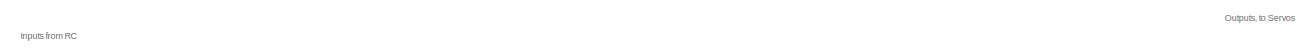
[diagram: root canvas - part 1/3, top center region]
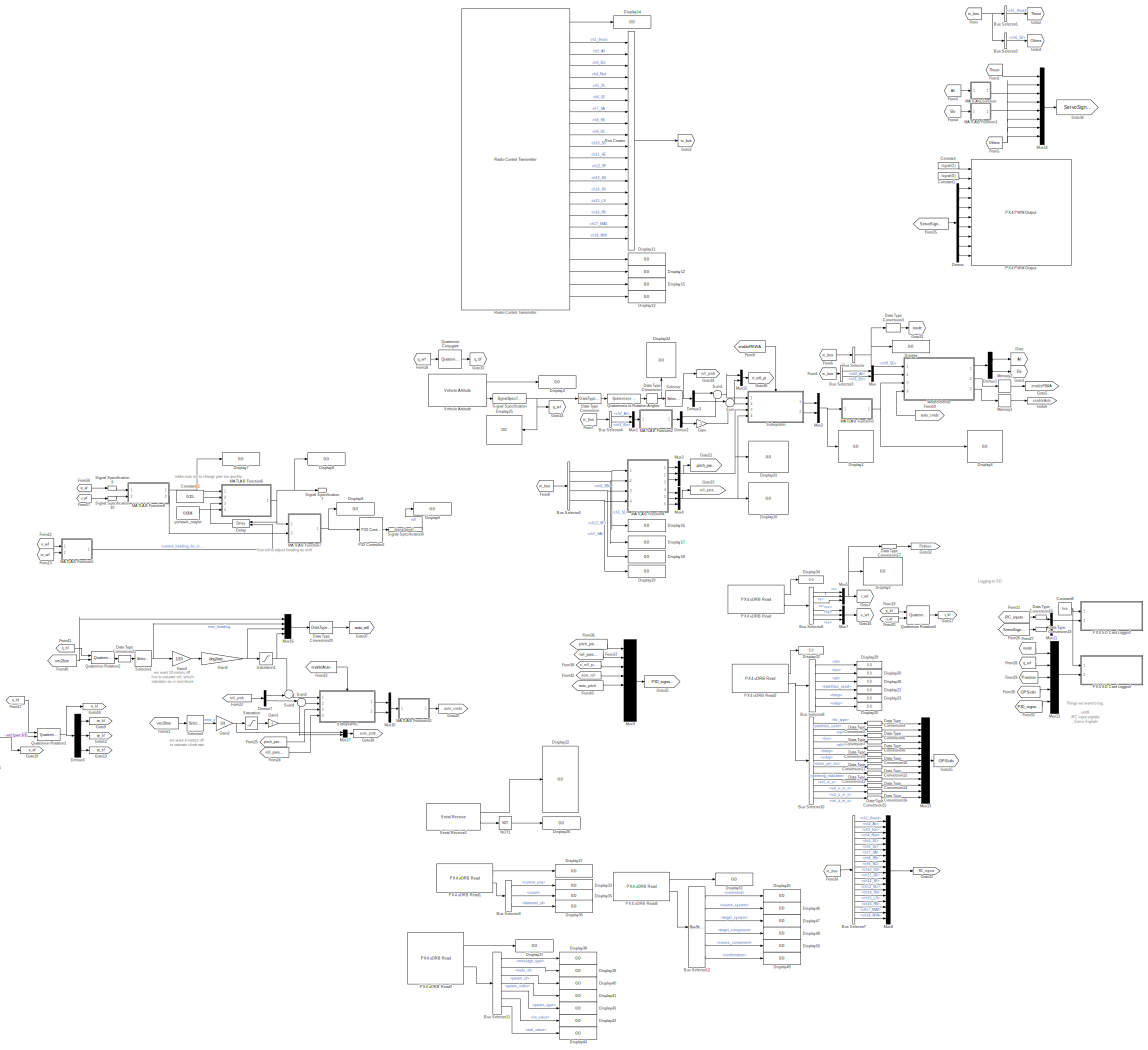
[diagram: root canvas - part 2/3, most of the canvas]
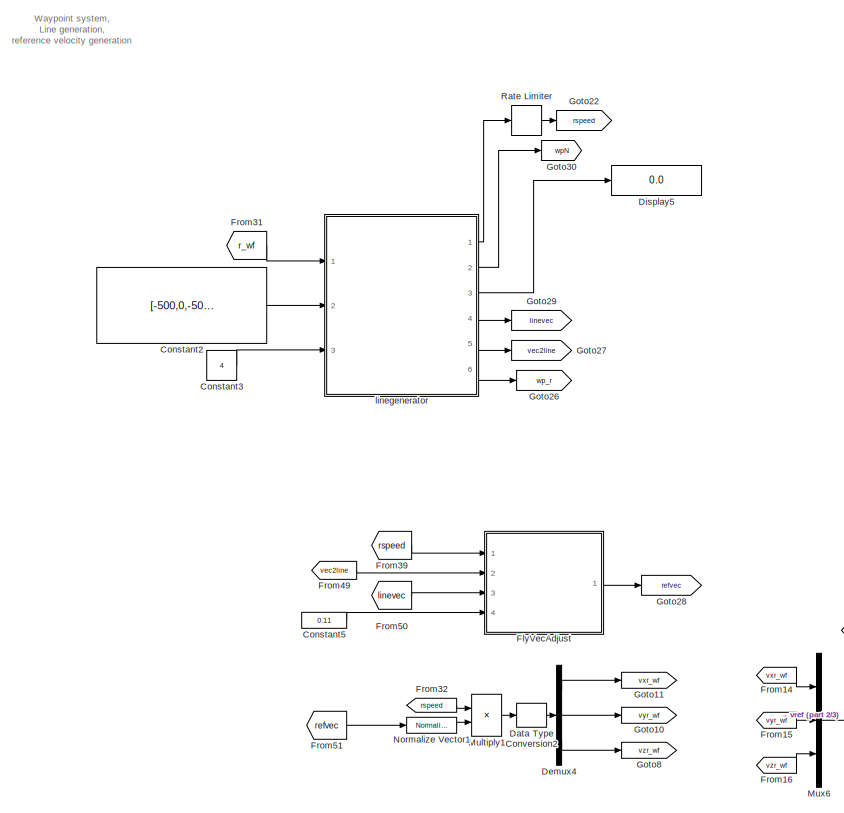
[diagram: root canvas - part 3/3, middle left region]
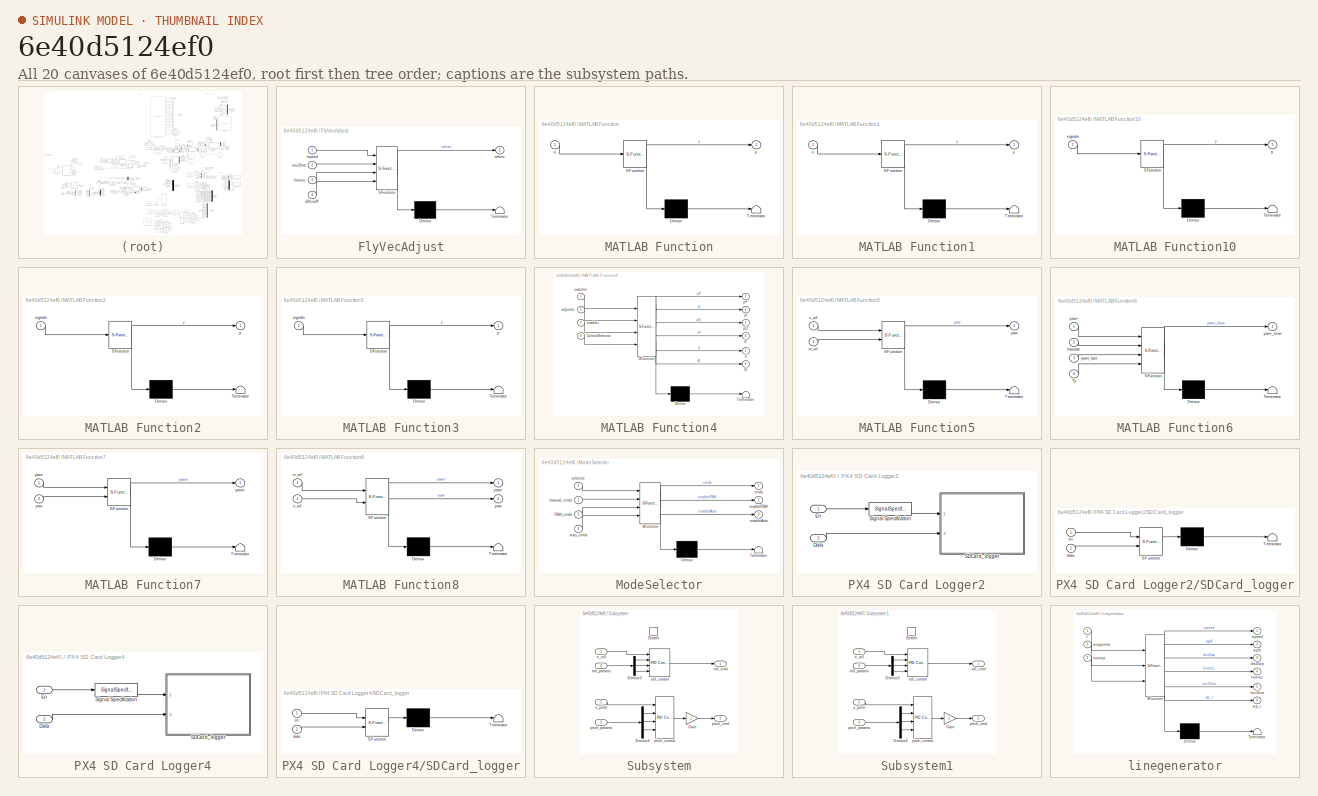
[diagram: thumbnail index - all 20 canvases of the model, root first then tree order]
MODEL slx_6e40d5124ef0
KIND model
CONFIG AbsTol = auto
CONFIG EnableMultiTasking = on
CONFIG FixedStep = auto
CONFIG MaxStep = auto
CONFIG MinStep = auto
CONFIG RelTol = 1e-3
CONFIG SampleTimeConstraint = Unconstrained
CONFIG Solver = FixedStepAuto
CONFIG SolverName = FixedStepAuto
CONFIG StartTime = 0.0
CONFIG StopTime = 10.0
BLOCK [BusCreator] Bus Creator
  DisplayOption = bar
  InheritFromInputs = on
  Inputs = 18
  Ports = [18, 1]
BLOCK [BusSelector] Bus Selector
  OutputAsBus = off
  OutputSignals = ch9_SC
  Ports = [1, 1]
BLOCK [BusSelector] Bus Selector1
  OutputAsBus = off
  OutputSignals = ch1_thrust
  Ports = [1, 1]
BLOCK [BusSelector] Bus Selector10
  OutputAsBus = off
  OutputSignals = fix_type,satellites_used,lat,lon,alt,hdop,vdop,noise_per_ms,jamming_indicator,vel_m_s,vel_n_m_s,vel_e_m_s,vel_d_m_s
  Ports = [1, 13]
BLOCK [BusSelector] Bus Selector11
  OutputAsBus = off
  OutputSignals = message_type,node_id,param_id,param_index,param_type,int_value,real_value
  Ports = [1, 7]
BLOCK [BusSelector] Bus Selector12
  OutputAsBus = off
  OutputSignals = command,source_system,target_system,target_component,source_component,confirmation
  Ports = [1, 6]
BLOCK [BusSelector] Bus Selector2
  OutputAsBus = off
  OutputSignals = ch6_S2
  Ports = [1, 1]
BLOCK [BusSelector] Bus Selector3
  OutputAsBus = off
  OutputSignals = ch2_Ail,ch3_Ele
  Ports = [1, 2]
BLOCK [BusSelector] Bus Selector4
  OutputAsBus = off
  OutputSignals = ch2_Ail,ch3_Ele
  Ports = [1, 2]
BLOCK [BusSelector] Bus Selector5
  OutputAsBus = off
  OutputSignals = ch8_SB,ch5_S1,ch12_SF,ch7_SA
  Ports = [1, 4]
BLOCK [BusSelector] Bus Selector6
  OutputAsBus = off
  OutputSignals = x,y,z,vx,vy,vz
  Ports = [1, 6]
BLOCK [BusSelector] Bus Selector7
  OutputAsBus = off
  OutputSignals = ch1_thrust,ch2_Ail,ch3_Ele,ch4_Rud,ch5_S1,ch6_S2,ch7_SA,ch8_SB,ch9_SC,ch10_SD,ch11_SE,ch12_SF,ch13_SG,ch14_SH,ch15_LS,ch16_RS,ch17_MAX,ch18_MIN
  Ports = [1, 18]
BLOCK [BusSelector] Bus Selector8
  OutputAsBus = off
  OutputSignals = lat,lon,alt,satellites_used,hdop,vdop
  Ports = [1, 6]
BLOCK [BusSelector] Bus Selector9
  OutputAsBus = off
  OutputSignals = current_seq,count,dataman_id
  Ports = [1, 3]
BLOCK [Constant] Constant
  Value = logical(1)
BLOCK [Constant] Constant1
  Value = logical(0)
BLOCK [Constant] Constant11
  Commented = on
  OutDataTypeStr = single
  SampleTime = 1/250
  Value = 0.15
BLOCK [Constant] Constant2
  OutDataTypeStr = single
  Value = [-500,0,-50,15,30; -500,-500,-50,15,30; 0, -500,-50,15,30; 0,0,-50,15,30]
BLOCK [Constant] Constant3
  OutDataTypeStr = single
  Value = 4
BLOCK [Constant] Constant5
  OutDataTypeStr = single
  SampleTime = -1
  Value = 0.11
BLOCK [Constant] Constant8
  OutDataTypeStr = boolean
  SampleTime = 0.004
  Value = true
BLOCK [DataTypeConversion] Data Type Conversion
  OutDataTypeStr = double
  RndMeth = Floor
  SaturateOnIntegerOverflow = off
BLOCK [DataTypeConversion] Data Type Conversion1
  OutDataTypeStr = single
  RndMeth = Floor
  SaturateOnIntegerOverflow = off
BLOCK [DataTypeConversion] Data Type Conversion10
  OutDataTypeStr = single
  RndMeth = Floor
  SaturateOnIntegerOverflow = off
BLOCK [DataTypeConversion] Data Type Conversion11
  OutDataTypeStr = single
  RndMeth = Floor
  SaturateOnIntegerOverflow = off
BLOCK [DataTypeConversion] Data Type Conversion12
  OutDataTypeStr = single
  RndMeth = Floor
  SaturateOnIntegerOverflow = off
BLOCK [DataTypeConversion] Data Type Conversion13
  OutDataTypeStr = single
  RndMeth = Floor
  SaturateOnIntegerOverflow = off
BLOCK [DataTypeConversion] Data Type Conversion14
  OutDataTypeStr = single
  RndMeth = Floor
  SaturateOnIntegerOverflow = off
BLOCK [DataTypeConversion] Data Type Conversion15
  OutDataTypeStr = single
  RndMeth = Floor
  SaturateOnIntegerOverflow = off
BLOCK [DataTypeConversion] Data Type Conversion16
  OutDataTypeStr = single
  RndMeth = Floor
  SaturateOnIntegerOverflow = off
BLOCK [DataTypeConversion] Data Type Conversion17
  OutDataTypeStr = single
  RndMeth = Floor
  SaturateOnIntegerOverflow = off
BLOCK [DataTypeConversion] Data Type Conversion18
  OutDataTypeStr = uint16
  RndMeth = Floor
  SaturateOnIntegerOverflow = off
BLOCK [DataTypeConversion] Data Type Conversion19
  OutDataTypeStr = uint16
  RndMeth = Floor
  SaturateOnIntegerOverflow = off
BLOCK [DataTypeConversion] Data Type Conversion2
  OutDataTypeStr = single
  RndMeth = Floor
  SaturateOnIntegerOverflow = off
BLOCK [DataTypeConversion] Data Type Conversion20
  OutDataTypeStr = single
  RndMeth = Floor
  SaturateOnIntegerOverflow = off
BLOCK [DataTypeConversion] Data Type Conversion21
  OutDataTypeStr = single
  RndMeth = Floor
  SaturateOnIntegerOverflow = off
BLOCK [DataTypeConversion] Data Type Conversion3
  OutDataTypeStr = single
  RndMeth = Floor
  SaturateOnIntegerOverflow = off
BLOCK [DataTypeConversion] Data Type Conversion4
  OutDataTypeStr = single
  RndMeth = Floor
  SaturateOnIntegerOverflow = off
BLOCK [DataTypeConversion] Data Type Conversion5
  OutDataTypeStr = single
  RndMeth = Floor
  SaturateOnIntegerOverflow = off
BLOCK [DataTypeConversion] Data Type Conversion6
  OutDataTypeStr = single
  RndMeth = Floor
  SaturateOnIntegerOverflow = off
BLOCK [DataTypeConversion] Data Type Conversion7
  OutDataTypeStr = single
  RndMeth = Floor
  SaturateOnIntegerOverflow = off
BLOCK [DataTypeConversion] Data Type Conversion8
  OutDataTypeStr = single
  RndMeth = Floor
  SaturateOnIntegerOverflow = off
BLOCK [DataTypeConversion] Data Type Conversion9
  OutDataTypeStr = single
  RndMeth = Floor
  SaturateOnIntegerOverflow = off
BLOCK [Delay] Delay
  Commented = on
  DelayLength = 1
  InitialConditionSource = Input port
  InputPortMap = u0,p4
  Ports = [2, 1]
BLOCK [Demux] Demux
  DisplayOption = bar
  Outputs = 8
  Ports = [1, 8]
BLOCK [Demux] Demux1
  DisplayOption = bar
  Outputs = 2
  Ports = [1, 2]
BLOCK [Demux] Demux2
  DisplayOption = bar
  Outputs = 2
  Ports = [1, 2]
BLOCK [Demux] Demux3
  DisplayOption = bar
  Outputs = 2
  Ports = [1, 2]
BLOCK [Demux] Demux4
  DisplayOption = bar
  Outputs = 3
  Ports = [1, 3]
BLOCK [Demux] Demux5
  DisplayOption = bar
  Outputs = 3
  Ports = [1, 3]
BLOCK [Demux] Demux7
  DisplayOption = bar
  Outputs = 2
  Ports = [1, 2]
BLOCK [Display] Display
  Decimation = 1
  Ports = [1]
BLOCK [Display] Display1
  Decimation = 1
  Ports = [1]
BLOCK [Display] Display10
  Decimation = 1
  Ports = [1]
BLOCK [Display] Display11
  Decimation = 1
  Ports = [1]
BLOCK [Display] Display12
  Decimation = 1
  Ports = [1]
BLOCK [Display] Display13
  Decimation = 1
  Ports = [1]
BLOCK [Display] Display14
  Decimation = 1
  Ports = [1]
BLOCK [Display] Display15
  Decimation = 1
  Ports = [1]
BLOCK [Display] Display16
  Decimation = 1
  Ports = [1]
BLOCK [Display] Display17
  Decimation = 1
  Ports = [1]
BLOCK [Display] Display18
  Decimation = 1
  Ports = [1]
BLOCK [Display] Display19
  Decimation = 1
  Ports = [1]
BLOCK [Display] Display2
  Decimation = 1
  Ports = [1]
BLOCK [Display] Display20
  Decimation = 1
  Ports = [1]
BLOCK [Display] Display21
  Decimation = 1
  Ports = [1]
BLOCK [Display] Display22
  Decimation = 1
  Ports = [1]
BLOCK [Display] Display23
  Decimation = 1
  Ports = [1]
BLOCK [Display] Display24
  Decimation = 1
  Ports = [1]
BLOCK [Display] Display25
  Decimation = 1
  Ports = [1]
BLOCK [Display] Display26
  Decimation = 1
  Ports = [1]
BLOCK [Display] Display27
  Decimation = 1
  Ports = [1]
BLOCK [Display] Display28
  Decimation = 1
  Ports = [1]
BLOCK [Display] Display29
  Decimation = 1
  Ports = [1]
BLOCK [Display] Display3
  Decimation = 1
  Ports = [1]
BLOCK [Display] Display30
  Decimation = 1
  Ports = [1]
BLOCK [Display] Display31
  Decimation = 1
  Ports = [1]
BLOCK [Display] Display32
  Decimation = 1
  Ports = [1]
BLOCK [Display] Display33
  Decimation = 1
  Ports = [1]
BLOCK [Display] Display34
  Decimation = 1
  Ports = [1]
BLOCK [Display] Display35
  Decimation = 1
  Ports = [1]
BLOCK [Display] Display36
  Decimation = 1
  Ports = [1]
BLOCK [Display] Display37
  Decimation = 1
  Ports = [1]
BLOCK [Display] Display38
  Decimation = 1
  Ports = [1]
BLOCK [Display] Display39
  Decimation = 1
  Ports = [1]
BLOCK [Display] Display4
  Decimation = 1
  Ports = [1]
BLOCK [Display] Display40
  Decimation = 1
  Ports = [1]
BLOCK [Display] Display41
  Decimation = 1
  Ports = [1]
BLOCK [Display] Display42
  Decimation = 1
  Ports = [1]
BLOCK [Display] Display43
  Decimation = 1
  Ports = [1]
BLOCK [Display] Display44
  Decimation = 1
  Ports = [1]
BLOCK [Display] Display45
  Decimation = 1
  Ports = [1]
BLOCK [Display] Display46
  Decimation = 1
  Ports = [1]
BLOCK [Display] Display47
  Decimation = 1
  Ports = [1]
BLOCK [Display] Display48
  Decimation = 1
  Ports = [1]
BLOCK [Display] Display49
  Decimation = 1
  Ports = [1]
BLOCK [Display] Display5
  Decimation = 1
  Ports = [1]
BLOCK [Display] Display50
  Decimation = 1
  Ports = [1]
BLOCK [Display] Display51
  Decimation = 1
  Ports = [1]
BLOCK [Display] Display6
  Commented = on
  Decimation = 1
  Ports = [1]
BLOCK [Display] Display7
  Commented = on
  Decimation = 1
  Ports = [1]
BLOCK [Display] Display8
  Commented = on
  Decimation = 1
  Ports = [1]
BLOCK [Display] Display9
  Commented = on
  Decimation = 1
  Ports = [1]
BLOCK [SubSystem] FlyVecAdjust
  ErrorFcn = Stateflow.Translate.translate
  PermitHierarchicalResolution = ExplicitOnly
  Ports = [4, 1]
  RequestExecContextInheritance = off
  SFBlockType = MATLAB Function
  TreatAsAtomicUnit = on
BLOCK [Demux] FlyVecAdjust/ Demux 
  Outputs = 1
  Ports = [1, 1]
BLOCK [S-Function] FlyVecAdjust/ SFunction 
  EnableBusSupport = on
  FunctionName = sf_sfun
  PortCounts = [4 2]
  Ports = [4, 2]
  SFcnIsStateOwnerBlock = off
  SFunctionDeploymentMode = off
  Tag = Stateflow S-Function Bixler_w_autopilot_sepTaskRate 18
BLOCK [Terminator] FlyVecAdjust/ Terminator 
BLOCK [Inport] FlyVecAdjust/d2lcoeff
  IconDisplay = Port number
  Port = 4
BLOCK [Inport] FlyVecAdjust/linevec
  IconDisplay = Port number
  Port = 3
BLOCK [Outport] FlyVecAdjust/refvec
  IconDisplay = Port number
BLOCK [Inport] FlyVecAdjust/rspeed
  IconDisplay = Port number
BLOCK [Inport] FlyVecAdjust/vec2line
  IconDisplay = Port number
  Port = 2
BLOCK [From] From
  GotoTag = rc_bus
BLOCK [From] From1
  GotoTag = rc_bus
BLOCK [From] From10
  GotoTag = auto_cmds
BLOCK [From] From11
  GotoTag = RC_inputs
BLOCK [From] From12
  Commented = on
  GotoTag = v_wf
BLOCK [From] From13
  Commented = on
  GotoTag = vr_wf
BLOCK [From] From14
  GotoTag = vxr_wf
BLOCK [From] From15
  GotoTag = vyr_wf
BLOCK [From] From16
  GotoTag = vzr_wf
BLOCK [From] From17
  GotoTag = q_bf
BLOCK [From] From18
  GotoTag = q_wf
BLOCK [From] From19
  GotoTag = q_bf
BLOCK [From] From2
  GotoTag = Thrust
BLOCK [From] From20
  GotoTag = v_wf
BLOCK [From] From21
  GotoTag = vec2line
BLOCK [From] From22
  GotoTag = roll_pitch
BLOCK [From] From23
  GotoTag = enableAuto
BLOCK [From] From24
  GotoTag = roll_params
BLOCK [From] From25
  GotoTag = pitch_params
BLOCK [From] From26
  GotoTag = ServoSignals
BLOCK [From] From27
  GotoTag = mode
BLOCK [From] From28
  GotoTag = q_wf
BLOCK [From] From29
  GotoTag = Position
BLOCK [From] From3
  GotoTag = Ail
BLOCK [From] From30
  GotoTag = GPSinfo
BLOCK [From] From31
  GotoTag = r_wf
BLOCK [From] From32
  GotoTag = rspeed
BLOCK [From] From33
  GotoTag = PID_signals
BLOCK [From] From34
  GotoTag = rc_bus
BLOCK [From] From35
  GotoTag = ServoSignals
BLOCK [From] From36
  GotoTag = pitch_params
BLOCK [From] From37
  GotoTag = roll_params
BLOCK [From] From38
  GotoTag = e_roll_pitch
BLOCK [From] From39
  GotoTag = rspeed
BLOCK [From] From4
  GotoTag = Ele
BLOCK [From] From40
  GotoTag = vec2line
BLOCK [From] From41
  GotoTag = q_bf
BLOCK [From] From42
  GotoTag = auto_roll
BLOCK [From] From43
  GotoTag = auto_pitch
BLOCK [From] From49
  GotoTag = vec2line
BLOCK [From] From5
  GotoTag = Others
BLOCK [From] From50
  GotoTag = linevec
BLOCK [From] From51
  GotoTag = refvec
BLOCK [From] From56
  Commented = on
  GotoTag = vr_wf
BLOCK [From] From57
  Commented = on
  GotoTag = v_wf
BLOCK [From] From6
  GotoTag = rc_bus
BLOCK [From] From7
  GotoTag = rc_bus
BLOCK [From] From8
  GotoTag = rc_bus
BLOCK [From] From9
  GotoTag = enableFBWA
BLOCK [Gain] Gain
  Gain = -1
  OutDataTypeStr = Inherit: Inherit via internal rule
  ParamDataTypeStr = Inherit: Inherit via internal rule
  SaturateOnIntegerOverflow = off
BLOCK [Gain] Gain1
  Gain = -1
  OutDataTypeStr = Inherit: Inherit via internal rule
  ParamDataTypeStr = Inherit: Inherit via internal rule
  SaturateOnIntegerOverflow = off
BLOCK [Gain] Gain2
  Gain = 1/4
  OutDataTypeStr = Inherit: Inherit via internal rule
  ParamDataTypeStr = Inherit: Inherit via internal rule
  SaturateOnIntegerOverflow = off
BLOCK [Gain] Gain3
  Gain = 1/10
  OutDataTypeStr = Inherit: Inherit via internal rule
  ParamDataTypeStr = Inherit: Inherit via internal rule
  SaturateOnIntegerOverflow = off
BLOCK [Gain] Gain4
  Gain = deg2rad(30)
  OutDataTypeStr = Inherit: Inherit via internal rule
  ParamDataTypeStr = Inherit: Inherit via internal rule
  SaturateOnIntegerOverflow = off
BLOCK [Goto] Goto
  GotoTag = Ail
BLOCK [Goto] Goto1
  GotoTag = Ele
BLOCK [Goto] Goto10
  GotoTag = vyr_wf
BLOCK [Goto] Goto11
  GotoTag = vxr_wf
BLOCK [Goto] Goto12
  GotoTag = vyr_bf
BLOCK [Goto] Goto13
  GotoTag = vzr_bf
BLOCK [Goto] Goto14
  GotoTag = q_wf
BLOCK [Goto] Goto15
  GotoTag = q_bf
BLOCK [Goto] Goto16
  GotoTag = v_wf
BLOCK [Goto] Goto17
  GotoTag = v_bf
BLOCK [Goto] Goto18
  GotoTag = vr_bf
BLOCK [Goto] Goto19
  GotoTag = vr_wf
BLOCK [Goto] Goto2
  GotoTag = Thrust
BLOCK [Goto] Goto20
  GotoTag = auto_cmds
BLOCK [Goto] Goto21
  GotoTag = pitch_params
BLOCK [Goto] Goto22
  GotoTag = rspeed
BLOCK [Goto] Goto23
  GotoTag = roll_params
BLOCK [Goto] Goto24
  GotoTag = roll_pitch
BLOCK [Goto] Goto25
  GotoTag = GPSinfo
BLOCK [Goto] Goto26
  GotoTag = wp_r
BLOCK [Goto] Goto27
  GotoTag = vec2line
BLOCK [Goto] Goto28
  GotoTag = refvec
BLOCK [Goto] Goto29
  GotoTag = linevec
BLOCK [Goto] Goto3
  GotoTag = rc_bus
BLOCK [Goto] Goto30
  GotoTag = wpN
BLOCK [Goto] Goto31
  GotoTag = mode
BLOCK [Goto] Goto32
  GotoTag = Position
BLOCK [Goto] Goto33
  GotoTag = RC_inputs
BLOCK [Goto] Goto34
  GotoTag = ServoSignals
BLOCK [Goto] Goto35
  GotoTag = PID_signals
BLOCK [Goto] Goto36
  GotoTag = e_roll_pitch
BLOCK [Goto] Goto37
  GotoTag = auto_roll
BLOCK [Goto] Goto38
  GotoTag = auto_pitch
BLOCK [Goto] Goto4
  GotoTag = Others
BLOCK [Goto] Goto5
  GotoTag = enableFBWA
BLOCK [Goto] Goto6
  GotoTag = enableAuto
BLOCK [Goto] Goto7
  GotoTag = r_wf
BLOCK [Goto] Goto8
  GotoTag = vzr_wf
BLOCK [Goto] Goto9
  GotoTag = vxr_bf
BLOCK [SubSystem] MATLAB Function
  ErrorFcn = Stateflow.Translate.translate
  PermitHierarchicalResolution = ExplicitOnly
  Ports = [1, 1]
  RequestExecContextInheritance = off
  SFBlockType = MATLAB Function
  TreatAsAtomicUnit = on
BLOCK [Demux] MATLAB Function/ Demux 
  Outputs = 1
  Ports = [1, 1]
BLOCK [S-Function] MATLAB Function/ SFunction 
  EnableBusSupport = on
  FunctionName = sf_sfun
  PortCounts = [1 2]
  Ports = [1, 2]
  SFcnIsStateOwnerBlock = off
  SFunctionDeploymentMode = off
  Tag = Stateflow S-Function Bixler_w_autopilot_sepTaskRate 2
BLOCK [Terminator] MATLAB Function/ Terminator 
BLOCK [Inport] MATLAB Function/u
  IconDisplay = Port number
BLOCK [Outport] MATLAB Function/y
  IconDisplay = Port number
BLOCK [SubSystem] MATLAB Function1
  ErrorFcn = Stateflow.Translate.translate
  PermitHierarchicalResolution = ExplicitOnly
  Ports = [1, 1]
  RequestExecContextInheritance = off
  SFBlockType = MATLAB Function
  TreatAsAtomicUnit = on
BLOCK [Demux] MATLAB Function1/ Demux 
  Outputs = 1
  Ports = [1, 1]
BLOCK [S-Function] MATLAB Function1/ SFunction 
  EnableBusSupport = on
  FunctionName = sf_sfun
  PortCounts = [1 2]
  Ports = [1, 2]
  SFcnIsStateOwnerBlock = off
  SFunctionDeploymentMode = off
  Tag = Stateflow S-Function Bixler_w_autopilot_sepTaskRate 1
BLOCK [Terminator] MATLAB Function1/ Terminator 
BLOCK [Inport] MATLAB Function1/u
  IconDisplay = Port number
BLOCK [Outport] MATLAB Function1/y
  IconDisplay = Port number
BLOCK [SubSystem] MATLAB Function10
  ErrorFcn = Stateflow.Translate.translate
  PermitHierarchicalResolution = ExplicitOnly
  Ports = [1, 1]
  RequestExecContextInheritance = off
  SFBlockType = MATLAB Function
  TreatAsAtomicUnit = on
BLOCK [Demux] MATLAB Function10/ Demux 
  Outputs = 1
  Ports = [1, 1]
BLOCK [S-Function] MATLAB Function10/ SFunction 
  EnableBusSupport = on
  FunctionName = sf_sfun
  PortCounts = [1 2]
  Ports = [1, 2]
  SFcnIsStateOwnerBlock = off
  SFunctionDeploymentMode = off
  Tag = Stateflow S-Function Bixler_w_autopilot_sepTaskRate 7
BLOCK [Terminator] MATLAB Function10/ Terminator 
BLOCK [Inport] MATLAB Function10/signals
  IconDisplay = Port number
BLOCK [Outport] MATLAB Function10/y
  IconDisplay = Port number
BLOCK [SubSystem] MATLAB Function2
  ErrorFcn = Stateflow.Translate.translate
  PermitHierarchicalResolution = ExplicitOnly
  Ports = [1, 1]
  RequestExecContextInheritance = off
  SFBlockType = MATLAB Function
  TreatAsAtomicUnit = on
BLOCK [Demux] MATLAB Function2/ Demux 
  Outputs = 1
  Ports = [1, 1]
BLOCK [S-Function] MATLAB Function2/ SFunction 
  EnableBusSupport = on
  FunctionName = sf_sfun
  PortCounts = [1 2]
  Ports = [1, 2]
  SFcnIsStateOwnerBlock = off
  SFunctionDeploymentMode = off
  Tag = Stateflow S-Function Bixler_w_autopilot_sepTaskRate 3
BLOCK [Terminator] MATLAB Function2/ Terminator 
BLOCK [Inport] MATLAB Function2/signals
  IconDisplay = Port number
BLOCK [Outport] MATLAB Function2/y
  IconDisplay = Port number
BLOCK [SubSystem] MATLAB Function3
  ErrorFcn = Stateflow.Translate.translate
  PermitHierarchicalResolution = ExplicitOnly
  Ports = [1, 1]
  RequestExecContextInheritance = off
  SFBlockType = MATLAB Function
  TreatAsAtomicUnit = on
BLOCK [Demux] MATLAB Function3/ Demux 
  Outputs = 1
  Ports = [1, 1]
BLOCK [S-Function] MATLAB Function3/ SFunction 
  EnableBusSupport = on
  FunctionName = sf_sfun
  PortCounts = [1 2]
  Ports = [1, 2]
  SFcnIsStateOwnerBlock = off
  SFunctionDeploymentMode = off
  Tag = Stateflow S-Function Bixler_w_autopilot_sepTaskRate 4
BLOCK [Terminator] MATLAB Function3/ Terminator 
BLOCK [Inport] MATLAB Function3/signals
  IconDisplay = Port number
BLOCK [Outport] MATLAB Function3/y
  IconDisplay = Port number
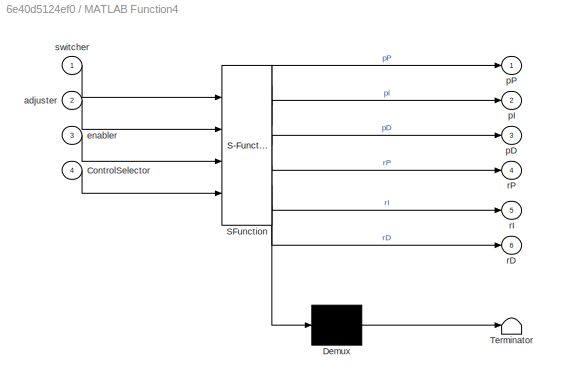
BLOCK [SubSystem] MATLAB Function4
  ErrorFcn = Stateflow.Translate.translate
  PermitHierarchicalResolution = ExplicitOnly
  Ports = [4, 6]
  RequestExecContextInheritance = off
  SFBlockType = MATLAB Function
  TreatAsAtomicUnit = on
BLOCK [Demux] MATLAB Function4/ Demux 
  Outputs = 1
  Ports = [1, 1]
BLOCK [S-Function] MATLAB Function4/ SFunction 
  EnableBusSupport = on
  FunctionName = sf_sfun
  PortCounts = [4 7]
  Ports = [4, 7]
  SFcnIsStateOwnerBlock = off
  SFunctionDeploymentMode = off
  Tag = Stateflow S-Function Bixler_w_autopilot_sepTaskRate 5
BLOCK [Terminator] MATLAB Function4/ Terminator 
BLOCK [Inport] MATLAB Function4/ControlSelector
  IconDisplay = Port number
  Port = 4
BLOCK [Inport] MATLAB Function4/adjuster
  IconDisplay = Port number
  Port = 2
BLOCK [Inport] MATLAB Function4/enabler
  IconDisplay = Port number
  Port = 3
BLOCK [Outport] MATLAB Function4/pD
  IconDisplay = Port number
  Port = 3
BLOCK [Outport] MATLAB Function4/pI
  IconDisplay = Port number
  Port = 2
BLOCK [Outport] MATLAB Function4/pP
  IconDisplay = Port number
BLOCK [Outport] MATLAB Function4/rD
  IconDisplay = Port number
  Port = 6
BLOCK [Outport] MATLAB Function4/rI
  IconDisplay = Port number
  Port = 5
BLOCK [Outport] MATLAB Function4/rP
  IconDisplay = Port number
  Port = 4
BLOCK [Inport] MATLAB Function4/switcher
  IconDisplay = Port number
BLOCK [SubSystem] MATLAB Function5
  Commented = on
  ErrorFcn = Stateflow.Translate.translate
  PermitHierarchicalResolution = ExplicitOnly
  Ports = [2, 1]
  RequestExecContextInheritance = off
  SFBlockType = MATLAB Function
  TreatAsAtomicUnit = on
BLOCK [Demux] MATLAB Function5/ Demux 
  Outputs = 1
  Ports = [1, 1]
BLOCK [S-Function] MATLAB Function5/ SFunction 
  EnableBusSupport = on
  FunctionName = sf_sfun
  PortCounts = [2 2]
  Ports = [2, 2]
  SFcnIsStateOwnerBlock = off
  SFunctionDeploymentMode = off
  Tag = Stateflow S-Function Bixler_w_autopilot_sepTaskRate 22
BLOCK [Terminator] MATLAB Function5/ Terminator 
BLOCK [Inport] MATLAB Function5/v_wf
  IconDisplay = Port number
BLOCK [Inport] MATLAB Function5/vr_wf
  IconDisplay = Port number
  Port = 2
BLOCK [Outport] MATLAB Function5/yaw
  IconDisplay = Port number
BLOCK [SubSystem] MATLAB Function6
  Commented = on
  ErrorFcn = Stateflow.Translate.translate
  PermitHierarchicalResolution = ExplicitOnly
  Ports = [4, 1]
  RequestExecContextInheritance = off
  SFBlockType = MATLAB Function
  TreatAsAtomicUnit = on
BLOCK [Demux] MATLAB Function6/ Demux 
  Outputs = 1
  Ports = [1, 1]
BLOCK [S-Function] MATLAB Function6/ SFunction 
  EnableBusSupport = on
  FunctionName = sf_sfun
  PortCounts = [4 2]
  Ports = [4, 2]
  SFcnIsStateOwnerBlock = off
  SFunctionDeploymentMode = off
  Tag = Stateflow S-Function Bixler_w_autopilot_sepTaskRate 15
BLOCK [Terminator] MATLAB Function6/ Terminator 
BLOCK [Inport] MATLAB Function6/Ts
  IconDisplay = Port number
  Port = 4
BLOCK [Inport] MATLAB Function6/maxrate
  IconDisplay = Port number
  Port = 2
BLOCK [Inport] MATLAB Function6/yawr
  IconDisplay = Port number
BLOCK [Inport] MATLAB Function6/yawr_last
  IconDisplay = Port number
  Port = 3
BLOCK [Outport] MATLAB Function6/yawr_slow
  IconDisplay = Port number
BLOCK [SubSystem] MATLAB Function7
  Commented = on
  ErrorFcn = Stateflow.Translate.translate
  PermitHierarchicalResolution = ExplicitOnly
  Ports = [2, 1]
  RequestExecContextInheritance = off
  SFBlockType = MATLAB Function
  TreatAsAtomicUnit = on
BLOCK [Demux] MATLAB Function7/ Demux 
  Outputs = 1
  Ports = [1, 1]
BLOCK [S-Function] MATLAB Function7/ SFunction 
  EnableBusSupport = on
  FunctionName = sf_sfun
  PortCounts = [2 2]
  Ports = [2, 2]
  SFcnIsStateOwnerBlock = off
  SFunctionDeploymentMode = off
  Tag = Stateflow S-Function Bixler_w_autopilot_sepTaskRate 14
BLOCK [Terminator] MATLAB Function7/ Terminator 
BLOCK [Inport] MATLAB Function7/yaw
  IconDisplay = Port number
  Port = 2
BLOCK [Outport] MATLAB Function7/yawe
  IconDisplay = Port number
BLOCK [Inport] MATLAB Function7/yawr
  IconDisplay = Port number
BLOCK [SubSystem] MATLAB Function8
  Commented = on
  ErrorFcn = Stateflow.Translate.translate
  PermitHierarchicalResolution = ExplicitOnly
  Ports = [2, 2]
  RequestExecContextInheritance = off
  SFBlockType = MATLAB Function
  TreatAsAtomicUnit = on
BLOCK [Demux] MATLAB Function8/ Demux 
  Outputs = 1
  Ports = [1, 1]
BLOCK [S-Function] MATLAB Function8/ SFunction 
  EnableBusSupport = on
  FunctionName = sf_sfun
  PortCounts = [2 3]
  Ports = [2, 3]
  SFcnIsStateOwnerBlock = off
  SFunctionDeploymentMode = off
  Tag = Stateflow S-Function Bixler_w_autopilot_sepTaskRate 17
BLOCK [Terminator] MATLAB Function8/ Terminator 
BLOCK [Inport] MATLAB Function8/v_wf
  IconDisplay = Port number
  Port = 2
BLOCK [Inport] MATLAB Function8/vr_wf
  IconDisplay = Port number
BLOCK [Outport] MATLAB Function8/yaw
  IconDisplay = Port number
  Port = 2
BLOCK [Outport] MATLAB Function8/yawr
  IconDisplay = Port number
BLOCK [Memory] Memory1
  InheritSampleTime = on
BLOCK [Memory] Memory2
  InheritSampleTime = on
BLOCK [SubSystem] ModeSelector
  ErrorFcn = Stateflow.Translate.translate
  PermitHierarchicalResolution = ExplicitOnly
  Ports = [4, 3]
  RequestExecContextInheritance = off
  SFBlockType = MATLAB Function
  TreatAsAtomicUnit = on
BLOCK [Demux] ModeSelector/ Demux 
  Outputs = 1
  Ports = [1, 1]
BLOCK [S-Function] ModeSelector/ SFunction 
  EnableBusSupport = on
  FunctionName = sf_sfun
  PortCounts = [4 4]
  Ports = [4, 4]
  SFcnIsStateOwnerBlock = off
  SFunctionDeploymentMode = off
  Tag = Stateflow S-Function Bixler_w_autopilot_sepTaskRate 6
BLOCK [Terminator] ModeSelector/ Terminator 
BLOCK [Inport] ModeSelector/FBW_cmds
  IconDisplay = Port number
  Port = 3
BLOCK [Inport] ModeSelector/auto_cmds
  IconDisplay = Port number
  Port = 4
BLOCK [Outport] ModeSelector/cmds
  IconDisplay = Port number
BLOCK [Outport] ModeSelector/enableAuto
  IconDisplay = Port number
  Port = 3
BLOCK [Outport] ModeSelector/enableFBW
  IconDisplay = Port number
  Port = 2
BLOCK [Inport] ModeSelector/manual_cmds
  IconDisplay = Port number
  Port = 2
BLOCK [Inport] ModeSelector/selector
  IconDisplay = Port number
BLOCK [Product] Multiply1
  InputSameDT = off
  OutDataTypeStr = Inherit: Inherit via internal rule
  Ports = [2, 1]
  RndMeth = Floor
  SaturateOnIntegerOverflow = off
BLOCK [Mux] Mux
  DisplayOption = bar
  Inputs = 2
  Ports = [2, 1]
BLOCK [Mux] Mux1
  DisplayOption = bar
  Inputs = 2
  Ports = [2, 1]
BLOCK [Mux] Mux10
  DisplayOption = bar
  Inputs = 2
  Ports = [2, 1]
BLOCK [Mux] Mux11
  DisplayOption = bar
  Inputs = 2
  Ports = [2, 1]
BLOCK [Mux] Mux12
  DisplayOption = bar
  Inputs = 5
  Ports = [5, 1]
BLOCK [Mux] Mux13
  DisplayOption = bar
  Inputs = 13
  Ports = [13, 1]
BLOCK [Mux] Mux14
  DisplayOption = bar
  Inputs = 8
  Ports = [8, 1]
BLOCK [Mux] Mux15
  DisplayOption = bar
  Inputs = 2
  Ports = [2, 1]
BLOCK [Mux] Mux16
  DisplayOption = bar
  Ports = [4, 1]
BLOCK [Mux] Mux17
  DisplayOption = bar
  Inputs = 2
  Ports = [2, 1]
BLOCK [Mux] Mux2
  DisplayOption = bar
  Inputs = 2
  Ports = [2, 1]
BLOCK [Mux] Mux3
  DisplayOption = bar
  Inputs = 3
  Ports = [3, 1]
BLOCK [Mux] Mux4
  DisplayOption = bar
  Inputs = 3
  Ports = [3, 1]
BLOCK [Mux] Mux5
  DisplayOption = bar
  Inputs = 3
  Ports = [3, 1]
BLOCK [Mux] Mux6
  DisplayOption = bar
  Inputs = 3
  Ports = [3, 1]
BLOCK [Mux] Mux7
  DisplayOption = bar
  Inputs = 3
  Ports = [3, 1]
BLOCK [Mux] Mux8
  DisplayOption = bar
  Inputs = 18
  Ports = [18, 1]
BLOCK [Mux] Mux9
  DisplayOption = bar
  Inputs = 8
  Ports = [8, 1]
BLOCK [Logic] NOT1
  AllPortsSameDT = off
  IconShape = distinctive
  Operator = NOT
  OutDataTypeStr = boolean
  Ports = [1, 1]
BLOCK [Reference] Normalize Vector1  REF=vrlib/Utilities/Normalize Vector
  Ports = [1, 1]
  SourceBlock = vrlib/Utilities/Normalize Vector
  SourceProductBaseCode = VR
  SourceProductName = Simulink 3D Animation
  SourceType = Normalize Vector
BLOCK [Reference] PID Controller2  REF=simulink/Continuous/PID Controller
  Commented = on
  Ports = [1, 1]
  SourceBlock = simulink/Continuous/PID Controller
  SourceProductBaseCode = SL
  SourceProductName = Simulink
  SourceType = PID 1dof
BLOCK [Reference] PX4 PWM Output  REF=px4lib/PX4 PWM Output
  Ports = [10]
  SourceBlock = px4lib/PX4 PWM Output
  SourceProductName = Embedded Coder Support Package for PX4 Autopilots
  SourceType = PX4 PWM Output
BLOCK [SubSystem] PX4 SD Card Logger2
  Ports = [2]
  RequestExecContextInheritance = off
BLOCK [Inport] PX4 SD Card Logger2/Data
  IconDisplay = Port number
  Port = 2
BLOCK [Inport] PX4 SD Card Logger2/En
  IconDisplay = Port number
BLOCK [SubSystem] PX4 SD Card Logger2/SDCard_logger
  ErrorFcn = Stateflow.Translate.translate
  PermitHierarchicalResolution = ExplicitOnly
  Ports = [2]
  RequestExecContextInheritance = off
  SFBlockType = MATLAB Function
  TreatAsAtomicUnit = on
BLOCK [Demux] PX4 SD Card Logger2/SDCard_logger/ Demux 
  Outputs = 1
  Ports = [1, 1]
BLOCK [S-Function] PX4 SD Card Logger2/SDCard_logger/ SFunction 
  EnableBusSupport = on
  FunctionName = sf_sfun
  Parameters = cacheflag,logname,numRecs
  PortCounts = [2 1]
  Ports = [2, 1]
  SFcnIsStateOwnerBlock = off
  SFunctionDeploymentMode = off
  Tag = Stateflow S-Function Bixler_w_autopilot_sepTaskRate 12
BLOCK [Terminator] PX4 SD Card Logger2/SDCard_logger/ Terminator 
BLOCK [Inport] PX4 SD Card Logger2/SDCard_logger/data
  IconDisplay = Port number
  Port = 2
BLOCK [Inport] PX4 SD Card Logger2/SDCard_logger/en
  IconDisplay = Port number
BLOCK [SignalSpecification] PX4 SD Card Logger2/Signal Specification
  OutDataTypeStr = boolean
BLOCK [SubSystem] PX4 SD Card Logger4
  Ports = [2]
  RequestExecContextInheritance = off
BLOCK [Inport] PX4 SD Card Logger4/Data
  IconDisplay = Port number
  Port = 2
BLOCK [Inport] PX4 SD Card Logger4/En
  IconDisplay = Port number
BLOCK [SubSystem] PX4 SD Card Logger4/SDCard_logger
  ErrorFcn = Stateflow.Translate.translate
  PermitHierarchicalResolution = ExplicitOnly
  Ports = [2]
  RequestExecContextInheritance = off
  SFBlockType = MATLAB Function
  TreatAsAtomicUnit = on
BLOCK [Demux] PX4 SD Card Logger4/SDCard_logger/ Demux 
  Outputs = 1
  Ports = [1, 1]
BLOCK [S-Function] PX4 SD Card Logger4/SDCard_logger/ SFunction 
  EnableBusSupport = on
  FunctionName = sf_sfun
  Parameters = cacheflag,logname,numRecs
  PortCounts = [2 1]
  Ports = [2, 1]
  SFcnIsStateOwnerBlock = off
  SFunctionDeploymentMode = off
  Tag = Stateflow S-Function Bixler_w_autopilot_sepTaskRate 13
BLOCK [Terminator] PX4 SD Card Logger4/SDCard_logger/ Terminator 
BLOCK [Inport] PX4 SD Card Logger4/SDCard_logger/data
  IconDisplay = Port number
  Port = 2
BLOCK [Inport] PX4 SD Card Logger4/SDCard_logger/en
  IconDisplay = Port number
BLOCK [SignalSpecification] PX4 SD Card Logger4/Signal Specification
  OutDataTypeStr = boolean
BLOCK [Reference] PX4 uORB Read  REF=px4uORBlib/PX4 uORB Read
  Ports = [0, 2]
  SourceBlock = px4uORBlib/PX4 uORB Read
  SourceProductName = Embedded Coder Support Package for PX4 Autopilots
  SourceType = PX4 uORB Read
BLOCK [Reference] PX4 uORB Read1  REF=px4uORBlib/PX4 uORB Read
  Ports = [0, 2]
  SourceBlock = px4uORBlib/PX4 uORB Read
  SourceProductName = Embedded Coder Support Package for PX4 Autopilots
  SourceType = PX4 uORB Read
BLOCK [Reference] PX4 uORB Read2  REF=px4uORBlib/PX4 uORB Read
  Ports = [0, 2]
  SourceBlock = px4uORBlib/PX4 uORB Read
  SourceProductName = Embedded Coder Support Package for PX4 Autopilots
  SourceType = PX4 uORB Read
BLOCK [Reference] PX4 uORB Read3  REF=px4uORBlib/PX4 uORB Read
  Ports = [0, 2]
  SourceBlock = px4uORBlib/PX4 uORB Read
  SourceProductName = Embedded Coder Support Package for PX4 Autopilots
  SourceType = PX4 uORB Read
BLOCK [Reference] PX4 uORB Read4  REF=px4uORBlib/PX4 uORB Read
  Ports = [0, 2]
  SourceBlock = px4uORBlib/PX4 uORB Read
  SourceProductName = Embedded Coder Support Package for PX4 Autopilots
  SourceType = PX4 uORB Read
BLOCK [Reference] Quaternion Conjugate  REF=aerolibutil/Quaternion
Conjugate
  Ports = [1, 1]
  SourceBlock = aerolibutil/Quaternion\nConjugate
  SourceProductBaseCode = AE
  SourceProductName = Aerospace Blockset
  SourceType = Quaternion Conjugate
BLOCK [Reference] Quaternion Rotation1  REF=aerolibutil/Quaternion
Rotation
  Ports = [2, 1]
  SourceBlock = aerolibutil/Quaternion\nRotation
  SourceProductBaseCode = AE
  SourceProductName = Aerospace Blockset
  SourceType = Quaternion Rotation
BLOCK [Reference] Quaternion Rotation2  REF=aerolibutil/Quaternion
Rotation
  Ports = [2, 1]
  SourceBlock = aerolibutil/Quaternion\nRotation
  SourceProductBaseCode = AE
  SourceProductName = Aerospace Blockset
  SourceType = Quaternion Rotation
BLOCK [Reference] Quaternion Rotation4  REF=aerolibutil/Quaternion
Rotation
  Ports = [2, 1]
  SourceBlock = aerolibutil/Quaternion\nRotation
  SourceProductBaseCode = AE
  SourceProductName = Aerospace Blockset
  SourceType = Quaternion Rotation
BLOCK [Reference] Quaternions to Rotation Angles  REF=sharedtransform/Quaternions to Rotation Angles
  AttributesFormatString = Rotation Order: %<rotationOrder>
  Ports = [1, 1]
  SourceBlock = sharedtransform/Quaternions to Rotation Angles
  SourceProductBaseCode = AE
  SourceProductName = Aerospace Blockset
  SourceType = Quat2Ang
BLOCK [Reference] Radio Control Transmitter  REF=px4Sensorslib/Radio Control Transmitter
  Ports = [0, 23]
  SourceBlock = px4Sensorslib/Radio Control Transmitter
  SourceProductName = Embedded Coder Support Package for PX4 Autopilots
  SourceType = PX4 Radio Control Transmitter
BLOCK [RateLimiter] Rate Limiter
  InitialCondition = 0.01
  SampleTimeMode = inherited
BLOCK [Saturate] Saturation
  InputPortMap = u0
  LowerLimit = deg2rad(-20)
  Ports = [1, 1]
  UpperLimit = deg2rad(15)
BLOCK [Saturate] Saturation1
  InputPortMap = u0
  LowerLimit = deg2rad(-30)
  Ports = [1, 1]
  UpperLimit = deg2rad(30)
BLOCK [Selector] Selector
  IndexOptions = Index vector (dialog)
  Indices = [3 2]
  InputPortWidth = 3
  OutputSizes = 1
  Ports = [1, 1]
BLOCK [Selector] Selector1
  IndexOptions = Index vector (dialog)
  Indices = [2]
  InputPortWidth = 3
  OutputSizes = 1
  Ports = [1, 1]
BLOCK [Selector] Selector2
  IndexOptions = Index vector (dialog)
  Indices = [3]
  InputPortWidth = 3
  OutputSizes = 1
  Ports = [1, 1]
BLOCK [Reference] Serial Receive1  REF=px4lib/Serial Receive
  Ports = [0, 2]
  SourceBlock = px4lib/Serial Receive
  SourceProductBaseCode = PX4AUTOPILOTS
  SourceProductName = Embedded Coder Support Package for PX4 Autopilots
  SourceType = PX4 Serial Receive
BLOCK [SignalSpecification] Signal Specification
  OutDataTypeStr = single
BLOCK [SignalSpecification] Signal Specification10
  Commented = on
  Dimensions = 3
  OutDataTypeStr = single
BLOCK [SignalSpecification] Signal Specification7
  Commented = on
  Dimensions = 1
  OutDataTypeStr = single
BLOCK [SignalSpecification] Signal Specification8
  Commented = on
  Dimensions = 1
  OutDataTypeStr = single
BLOCK [SignalSpecification] Signal Specification9
  Commented = on
  Dimensions = 3
  OutDataTypeStr = single
BLOCK [SubSystem] Subsystem
  Ports = [4, 2, 1]
  RequestExecContextInheritance = off
BLOCK [Demux] Subsystem/Demux3
  DisplayOption = bar
  Outputs = 3
  Ports = [1, 3]
BLOCK [Demux] Subsystem/Demux4
  DisplayOption = bar
  Outputs = 3
  Ports = [1, 3]
BLOCK [EnablePort] Subsystem/Enable
  Ports = []
BLOCK [Gain] Subsystem/Gain
  Gain = -1
  OutDataTypeStr = Inherit: Inherit via internal rule
  ParamDataTypeStr = Inherit: Inherit via internal rule
  SaturateOnIntegerOverflow = off
BLOCK [Inport] Subsystem/e_pitch
  IconDisplay = Port number
  Port = 2
BLOCK [Inport] Subsystem/e_roll
  IconDisplay = Port number
BLOCK [Outport] Subsystem/pitch_cmd
  IconDisplay = Port number
  Port = 2
BLOCK [Reference] Subsystem/pitch_control  REF=simulink/Continuous/PID Controller
  Ports = [4, 1]
  SourceBlock = simulink/Continuous/PID Controller
  SourceProductBaseCode = SL
  SourceProductName = Simulink
  SourceType = PID 1dof
BLOCK [Inport] Subsystem/pitch_params
  IconDisplay = Port number
  Port = 3
BLOCK [Outport] Subsystem/roll_cmd
  IconDisplay = Port number
BLOCK [Reference] Subsystem/roll_control  REF=simulink/Continuous/PID Controller
  Ports = [4, 1]
  SourceBlock = simulink/Continuous/PID Controller
  SourceProductBaseCode = SL
  SourceProductName = Simulink
  SourceType = PID 1dof
BLOCK [Inport] Subsystem/roll_params
  IconDisplay = Port number
  Port = 4
BLOCK [SubSystem] Subsystem1
  Ports = [4, 2, 1]
  RequestExecContextInheritance = off
BLOCK [Demux] Subsystem1/Demux3
  DisplayOption = bar
  Outputs = 3
  Ports = [1, 3]
BLOCK [Demux] Subsystem1/Demux4
  DisplayOption = bar
  Outputs = 3
  Ports = [1, 3]
BLOCK [EnablePort] Subsystem1/Enable
  Ports = []
BLOCK [Gain] Subsystem1/Gain
  Gain = -1
  OutDataTypeStr = Inherit: Inherit via internal rule
  ParamDataTypeStr = Inherit: Inherit via internal rule
  SaturateOnIntegerOverflow = off
BLOCK [Inport] Subsystem1/e_pitch
  IconDisplay = Port number
  Port = 2
BLOCK [Inport] Subsystem1/e_roll
  IconDisplay = Port number
BLOCK [Outport] Subsystem1/pitch_cmd
  IconDisplay = Port number
  Port = 2
BLOCK [Reference] Subsystem1/pitch_control  REF=simulink/Continuous/PID Controller
  Ports = [4, 1]
  SourceBlock = simulink/Continuous/PID Controller
  SourceProductBaseCode = SL
  SourceProductName = Simulink
  SourceType = PID 1dof
BLOCK [Inport] Subsystem1/pitch_params
  IconDisplay = Port number
  Port = 3
BLOCK [Outport] Subsystem1/roll_cmd
  IconDisplay = Port number
BLOCK [Reference] Subsystem1/roll_control  REF=simulink/Continuous/PID Controller
  Ports = [4, 1]
  SourceBlock = simulink/Continuous/PID Controller
  SourceProductBaseCode = SL
  SourceProductName = Simulink
  SourceType = PID 1dof
BLOCK [Inport] Subsystem1/roll_params
  IconDisplay = Port number
  Port = 4
BLOCK [Sum] Sum
  IconShape = round
  InputSameDT = off
  Inputs = |-+
  OutDataTypeStr = Inherit: Inherit via internal rule
  Ports = [2, 1]
  SaturateOnIntegerOverflow = off
BLOCK [Sum] Sum1
  IconShape = round
  InputSameDT = off
  Inputs = |-+
  OutDataTypeStr = Inherit: Inherit via internal rule
  Ports = [2, 1]
  SaturateOnIntegerOverflow = off
BLOCK [Sum] Sum3
  IconShape = round
  InputSameDT = off
  Inputs = |-+
  OutDataTypeStr = Inherit: Inherit via internal rule
  Ports = [2, 1]
  SaturateOnIntegerOverflow = off
BLOCK [Sum] Sum4
  IconShape = round
  InputSameDT = off
  Inputs = +-|
  OutDataTypeStr = Inherit: Inherit via internal rule
  Ports = [2, 1]
  SaturateOnIntegerOverflow = off
BLOCK [Reference] Vehicle Attitude  REF=px4Sensorslib/Vehicle Attitude
  Ports = [0, 2]
  SourceBlock = px4Sensorslib/Vehicle Attitude
  SourceProductName = Embedded Coder Support Package for PX4 Autopilots
  SourceType = PX4 Vehicle Attitude
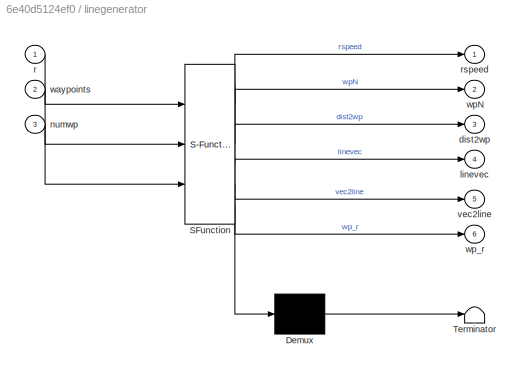
BLOCK [SubSystem] linegenerator
  ErrorFcn = Stateflow.Translate.translate
  PermitHierarchicalResolution = ExplicitOnly
  Ports = [3, 6]
  RequestExecContextInheritance = off
  SFBlockType = MATLAB Function
  TreatAsAtomicUnit = on
BLOCK [Demux] linegenerator/ Demux 
  Outputs = 1
  Ports = [1, 1]
BLOCK [S-Function] linegenerator/ SFunction 
  EnableBusSupport = on
  FunctionName = sf_sfun
  PortCounts = [3 7]
  Ports = [3, 7]
  SFcnIsStateOwnerBlock = off
  SFunctionDeploymentMode = off
  Tag = Stateflow S-Function Bixler_w_autopilot_sepTaskRate 8
BLOCK [Terminator] linegenerator/ Terminator 
BLOCK [Outport] linegenerator/dist2wp
  IconDisplay = Port number
  Port = 3
BLOCK [Outport] linegenerator/linevec
  IconDisplay = Port number
  Port = 4
BLOCK [Inport] linegenerator/numwp
  IconDisplay = Port number
  Port = 3
BLOCK [Inport] linegenerator/r
  IconDisplay = Port number
BLOCK [Outport] linegenerator/rspeed
  IconDisplay = Port number
BLOCK [Outport] linegenerator/vec2line
  IconDisplay = Port number
  Port = 5
BLOCK [Inport] linegenerator/waypoints
  IconDisplay = Port number
  Port = 2
BLOCK [Outport] linegenerator/wpN
  IconDisplay = Port number
  Port = 2
BLOCK [Outport] linegenerator/wp_r
  IconDisplay = Port number
  Port = 6
BLOCK [Constant] pixhawk_maybe 
  Commented = on
  OutDataTypeStr = single
  SampleTime = 1/250
  Value = 0.004
ANNOTATION (root): Inputs from RC
ANNOTATION (root): Logging to SD
ANNOTATION (root): Outputs, to Servos
ANNOTATION (root): Things we want to log: uint8 -RC input signals - Servo Signals single - Mode - Attitude - Position - GPS info - Pid signals (with errors)
ANNOTATION (root): Use roll to adjust heading as well
ANNOTATION (root): Waypoint system, Line generation, reference velocity generation
ANNOTATION (root): make sure not to change yaw too quickly
ANNOTATION (root): we want 10 metres off line to saturate roll, which saturates as in next block
ANNOTATION (root): we want 4 metres off to saturate climb rate
LINE Bus Creator:1 -> Goto3:1
LINE Bus Selector10:1 -> Data Type Conversion4:1
LINE Bus Selector10:10 -> Data Type Conversion13:1
LINE Bus Selector10:11 -> Data Type Conversion14:1
LINE Bus Selector10:12 -> Data Type Conversion15:1
LINE Bus Selector10:13 -> Data Type Conversion16:1
LINE Bus Selector10:2 -> Data Type Conversion5:1
LINE Bus Selector10:3 -> Data Type Conversion6:1
LINE Bus Selector10:4 -> Data Type Conversion7:1
LINE Bus Selector10:5 -> Data Type Conversion8:1
LINE Bus Selector10:6 -> Data Type Conversion9:1
LINE Bus Selector10:7 -> Data Type Conversion10:1
LINE Bus Selector10:8 -> Data Type Conversion11:1
LINE Bus Selector10:9 -> Data Type Conversion12:1
LINE Bus Selector11:1 -> Display38:1
LINE Bus Selector11:2 -> Display39:1
LINE Bus Selector11:3 -> Display40:1
LINE Bus Selector11:4 -> Display41:1
LINE Bus Selector11:5 -> Display43:1
LINE Bus Selector11:6 -> Display42:1
LINE Bus Selector11:7 -> Display44:1
LINE Bus Selector12:1 -> Display45:1
LINE Bus Selector12:2 -> Display46:1
LINE Bus Selector12:3 -> Display47:1
LINE Bus Selector12:4 -> Display48:1
LINE Bus Selector12:5 -> Display50:1
LINE Bus Selector12:6 -> Display49:1
LINE Bus Selector1:1 -> Goto2:1
LINE Bus Selector2:1 -> Goto4:1
LINE Bus Selector3:1 -> Mux:1
LINE Bus Selector3:2 -> Mux:2
LINE Bus Selector4:1 -> Mux1:1
LINE Bus Selector4:2 -> Mux1:2
NET Bus Selector5:1 -> Display16:1, MATLAB Function4:1
NET Bus Selector5:2 -> Display17:1, MATLAB Function4:2
NET Bus Selector5:3 -> Display18:1, MATLAB Function4:3
NET Bus Selector5:4 -> Display19:1, MATLAB Function4:4
LINE Bus Selector6:1 -> Mux5:1
LINE Bus Selector6:2 -> Mux5:2
LINE Bus Selector6:3 -> Mux5:3
LINE Bus Selector6:4 -> Mux7:1
LINE Bus Selector6:5 -> Mux7:2
LINE Bus Selector6:6 -> Mux7:3
LINE Bus Selector7:1 -> Mux8:1
LINE Bus Selector7:10 -> Mux8:10
LINE Bus Selector7:11 -> Mux8:11
LINE Bus Selector7:12 -> Mux8:12
LINE Bus Selector7:13 -> Mux8:13
LINE Bus Selector7:14 -> Mux8:14
LINE Bus Selector7:15 -> Mux8:15
LINE Bus Selector7:16 -> Mux8:16
LINE Bus Selector7:17 -> Mux8:17
LINE Bus Selector7:18 -> Mux8:18
LINE Bus Selector7:2 -> Mux8:2
LINE Bus Selector7:3 -> Mux8:3
LINE Bus Selector7:4 -> Mux8:4
LINE Bus Selector7:5 -> Mux8:5
LINE Bus Selector7:6 -> Mux8:6
LINE Bus Selector7:7 -> Mux8:7
LINE Bus Selector7:8 -> Mux8:8
LINE Bus Selector7:9 -> Mux8:9
LINE Bus Selector8:1 -> Display29:1
LINE Bus Selector8:2 -> Display30:1
LINE Bus Selector8:3 -> Display28:1
LINE Bus Selector8:4 -> Display21:1
LINE Bus Selector8:5 -> Display23:1
LINE Bus Selector8:6 -> Display20:1
LINE Bus Selector9:1 -> Display33:1
LINE Bus Selector9:2 -> Display35:1
LINE Bus Selector9:3 -> Display36:1
NET Bus Selector:1 -> Data Type Conversion3:1, Display:1, ModeSelector:1
LINE Constant11:1 -> MATLAB Function6:2
LINE Constant1:1 -> PX4 PWM Output:2
LINE Constant2:1 -> linegenerator:2
LINE Constant3:1 -> linegenerator:3
LINE Constant5:1 -> FlyVecAdjust:4
NET Constant8:1 -> PX4 SD Card Logger2:1, PX4 SD Card Logger4:1
LINE Constant:1 -> PX4 PWM Output:1
LINE Data Type Conversion10:1 -> Mux13:7
LINE Data Type Conversion11:1 -> Mux13:8
LINE Data Type Conversion12:1 -> Mux13:9
LINE Data Type Conversion13:1 -> Mux13:10
LINE Data Type Conversion14:1 -> Mux13:11
LINE Data Type Conversion15:1 -> Mux13:12
LINE Data Type Conversion16:1 -> Mux13:13
LINE Data Type Conversion17:1 -> Goto32:1
LINE Data Type Conversion18:1 -> Mux11:1
LINE Data Type Conversion19:1 -> Mux11:2
NET Data Type Conversion1:1 -> Display24:1, Selector:1
LINE Data Type Conversion20:1 -> Goto37:1
LINE Data Type Conversion21:1 -> Selector1:1
LINE Data Type Conversion2:1 -> Demux4:1
LINE Data Type Conversion3:1 -> Goto31:1
LINE Data Type Conversion4:1 -> Mux13:1
LINE Data Type Conversion5:1 -> Mux13:2
LINE Data Type Conversion6:1 -> Mux13:3
LINE Data Type Conversion7:1 -> Mux13:4
LINE Data Type Conversion8:1 -> Mux13:5
LINE Data Type Conversion9:1 -> Mux13:6
LINE Data Type Conversion:1 -> Quaternions to Rotation Angles:1
LINE Delay:1 -> MATLAB Function6:3
LINE Demux1:1 -> Goto:1
LINE Demux1:2 -> Goto1:1
LINE Demux2:1 -> Sum1:2
LINE Demux2:2 -> Gain:1
LINE Demux3:1 -> Sum1:1
LINE Demux3:2 -> Sum:1
LINE Demux4:1 -> Goto11:1
LINE Demux4:2 -> Goto10:1
LINE Demux4:3 -> Goto8:1
LINE Demux5:1 -> Goto9:1
LINE Demux5:2 -> Goto12:1
LINE Demux5:3 -> Goto13:1
LINE Demux7:1 -> Sum4:2
LINE Demux7:2 -> Sum3:1
LINE Demux:1 -> PX4 PWM Output:3
LINE Demux:2 -> PX4 PWM Output:4
LINE Demux:3 -> PX4 PWM Output:5
LINE Demux:4 -> PX4 PWM Output:6
LINE Demux:5 -> PX4 PWM Output:7
LINE Demux:6 -> PX4 PWM Output:8
LINE Demux:7 -> PX4 PWM Output:9
LINE Demux:8 -> PX4 PWM Output:10
LINE FlyVecAdjust:1 -> Goto28:1
LINE From10:1 -> ModeSelector:4
LINE From11:1 -> Data Type Conversion18:1
LINE From12:1 -> MATLAB Function5:1
LINE From13:1 -> MATLAB Function5:2
LINE From14:1 -> Mux6:1
LINE From15:1 -> Mux6:2
LINE From16:1 -> Mux6:3
LINE From17:1 -> Quaternion Rotation1:1
LINE From18:1 -> Quaternion Conjugate:1
LINE From19:1 -> Quaternion Rotation4:1
LINE From1:1 -> Bus Selector3:1
LINE From20:1 -> Quaternion Rotation4:2
LINE From21:1 -> Selector2:1
LINE From22:1 -> Demux7:1
LINE From23:1 -> Subsystem1:enable
LINE From24:1 -> Subsystem1:4
LINE From25:1 -> Subsystem1:3
LINE From26:1 -> Data Type Conversion19:1
LINE From27:1 -> Mux12:1
LINE From28:1 -> Mux12:2
LINE From29:1 -> Mux12:3
LINE From2:1 -> Mux14:1
LINE From30:1 -> Mux12:4
LINE From31:1 -> linegenerator:1
LINE From32:1 -> Multiply1:1
LINE From33:1 -> Mux12:5
LINE From34:1 -> Bus Selector7:1
LINE From35:1 -> Demux:1
LINE From36:1 -> Mux9:1
LINE From37:1 -> Mux9:2
LINE From38:1 -> Mux9:3
LINE From39:1 -> FlyVecAdjust:1
LINE From3:1 -> MATLAB Function:1
NET From40:1 -> Mux16:1, Quaternion Rotation2:2
LINE From41:1 -> Quaternion Rotation2:1
LINE From42:1 -> Mux9:4
LINE From43:1 -> Mux9:5
LINE From49:1 -> FlyVecAdjust:2
LINE From4:1 -> MATLAB Function1:1
LINE From50:1 -> FlyVecAdjust:3
LINE From51:1 -> Normalize Vector1:1
LINE From56:1 -> Signal Specification9:1
LINE From57:1 -> Signal Specification10:1
NET From5:1 -> Mux14:2, Mux14:4, Mux14:6, Mux14:7, Mux14:8
LINE From6:1 -> Bus Selector:1
LINE From7:1 -> Bus Selector4:1
LINE From8:1 -> Bus Selector5:1
LINE From9:1 -> Subsystem:enable
NET From:1 -> Bus Selector1:1, Bus Selector2:1
NET Gain1:1 -> Mux17:2, Sum3:2
NET Gain2:1 -> Mux17:1, Saturation:1
LINE Gain3:1 -> Gain4:1
NET Gain4:1 -> Mux16:3, Saturation1:1
LINE Gain:1 -> Sum:2
LINE MATLAB Function10:1 -> Goto20:1
LINE MATLAB Function1:1 -> Mux14:5
LINE MATLAB Function2:1 -> Demux2:1
NET MATLAB Function3:1 -> Display4:1, ModeSelector:3
LINE MATLAB Function4:1 -> Mux3:1
LINE MATLAB Function4:2 -> Mux3:2
LINE MATLAB Function4:3 -> Mux3:3
LINE MATLAB Function4:4 -> Mux4:1
LINE MATLAB Function4:5 -> Mux4:2
LINE MATLAB Function4:6 -> Mux4:3
LINE MATLAB Function5:1 -> Delay:2
NET MATLAB Function6:1 -> Delay:1, Display8:1, MATLAB Function7:1, Signal Specification7:1
NET MATLAB Function7:1 -> Display9:1, PID Controller2:1
NET MATLAB Function8:1 -> Display7:1, MATLAB Function6:1
LINE MATLAB Function8:2 -> MATLAB Function7:2
LINE MATLAB Function:1 -> Mux14:3
LINE Memory1:1 -> Goto6:1
LINE Memory2:1 -> Goto5:1
LINE ModeSelector:1 -> Demux1:1
LINE ModeSelector:2 -> Memory2:1
LINE ModeSelector:3 -> Memory1:1
LINE Multiply1:1 -> Data Type Conversion2:1
LINE Mux10:1 -> MATLAB Function10:1
LINE Mux11:1 -> PX4 SD Card Logger2:2
LINE Mux12:1 -> PX4 SD Card Logger4:2
LINE Mux13:1 -> Goto25:1
LINE Mux14:1 -> Goto34:1
LINE Mux15:1 -> Goto36:1
LINE Mux16:1 -> Data Type Conversion20:1
LINE Mux17:1 -> Goto38:1
LINE Mux1:1 -> MATLAB Function2:1
NET Mux2:1 -> Display1:1, MATLAB Function3:1
NET Mux3:1 -> Display31:1, Goto21:1, Subsystem:3
NET Mux4:1 -> Display10:1, Goto23:1, Subsystem:4
NET Mux5:1 -> Data Type Conversion17:1, Display2:1, Goto7:1
NET Mux6:1 -> Goto19:1, Quaternion Rotation1:2
LINE Mux7:1 -> Goto16:1
LINE Mux8:1 -> Goto33:1
LINE Mux9:1 -> Goto35:1
LINE Mux:1 -> ModeSelector:2
LINE NOT1:1 -> Display26:1
LINE Normalize Vector1:1 -> Multiply1:2
LINE PID Controller2:1 -> Signal Specification8:1
LINE PX4 SD Card Logger2/Data:1 -> PX4 SD Card Logger2/SDCard_logger:2
LINE PX4 SD Card Logger2/En:1 -> PX4 SD Card Logger2/Signal Specification:1
LINE PX4 SD Card Logger2/Signal Specification:1 -> PX4 SD Card Logger2/SDCard_logger:1
LINE PX4 SD Card Logger4/Data:1 -> PX4 SD Card Logger4/SDCard_logger:2
LINE PX4 SD Card Logger4/En:1 -> PX4 SD Card Logger4/Signal Specification:1
LINE PX4 SD Card Logger4/Signal Specification:1 -> PX4 SD Card Logger4/SDCard_logger:1
LINE PX4 uORB Read1:1 -> Display27:1
LINE PX4 uORB Read1:2 -> Bus Selector9:1
LINE PX4 uORB Read2:1 -> Display32:1
NET PX4 uORB Read2:2 -> Bus Selector10:1, Bus Selector8:1
LINE PX4 uORB Read3:1 -> Display37:1
LINE PX4 uORB Read3:2 -> Bus Selector11:1
LINE PX4 uORB Read4:1 -> Display51:1
LINE PX4 uORB Read4:2 -> Bus Selector12:1
LINE PX4 uORB Read:1 -> Display34:1
LINE PX4 uORB Read:2 -> Bus Selector6:1
LINE Quaternion Conjugate:1 -> Goto15:1
NET Quaternion Rotation1:1 -> Demux5:1, Goto18:1
LINE Quaternion Rotation2:1 -> Data Type Conversion21:1
LINE Quaternion Rotation4:1 -> Goto17:1
LINE Quaternions to Rotation Angles:1 -> Data Type Conversion1:1
LINE Radio Control Transmitter:1 -> Display14:1
LINE Radio Control Transmitter:10 -> Bus Creator:9
LINE Radio Control Transmitter:11 -> Bus Creator:10
LINE Radio Control Transmitter:12 -> Bus Creator:11
LINE Radio Control Transmitter:13 -> Bus Creator:12
LINE Radio Control Transmitter:14 -> Bus Creator:13
LINE Radio Control Transmitter:15 -> Bus Creator:14
LINE Radio Control Transmitter:16 -> Bus Creator:15
LINE Radio Control Transmitter:17 -> Bus Creator:16
LINE Radio Control Transmitter:18 -> Bus Creator:17
LINE Radio Control Transmitter:19 -> Bus Creator:18
LINE Radio Control Transmitter:2 -> Bus Creator:1
LINE Radio Control Transmitter:20 -> Display11:1
LINE Radio Control Transmitter:21 -> Display12:1
LINE Radio Control Transmitter:22 -> Display15:1
LINE Radio Control Transmitter:23 -> Display13:1
LINE Radio Control Transmitter:3 -> Bus Creator:2
LINE Radio Control Transmitter:4 -> Bus Creator:3
LINE Radio Control Transmitter:5 -> Bus Creator:4
LINE Radio Control Transmitter:6 -> Bus Creator:5
LINE Radio Control Transmitter:7 -> Bus Creator:6
LINE Radio Control Transmitter:8 -> Bus Creator:7
LINE Radio Control Transmitter:9 -> Bus Creator:8
LINE Rate Limiter:1 -> Goto22:1
NET Saturation1:1 -> Mux16:4, Sum4:1
LINE Saturation:1 -> Gain1:1
NET Selector1:1 -> Gain3:1, Mux16:2
LINE Selector2:1 -> Gain2:1
NET Selector:1 -> Demux3:1, Goto24:1
LINE Serial Receive1:1 -> Display22:1
LINE Serial Receive1:2 -> NOT1:1
LINE Signal Specification10:1 -> MATLAB Function8:2
LINE Signal Specification8:1 -> Display6:1
LINE Signal Specification9:1 -> MATLAB Function8:1
NET Signal Specification:1 -> Data Type Conversion:1, Display25:1, Goto14:1
LINE Subsystem/Demux3:1 -> Subsystem/roll_control:2
LINE Subsystem/Demux3:2 -> Subsystem/roll_control:3
LINE Subsystem/Demux3:3 -> Subsystem/roll_control:4
LINE Subsystem/Demux4:1 -> Subsystem/pitch_control:2
LINE Subsystem/Demux4:2 -> Subsystem/pitch_control:3
LINE Subsystem/Demux4:3 -> Subsystem/pitch_control:4
LINE Subsystem/Gain:1 -> Subsystem/pitch_cmd:1
LINE Subsystem/e_pitch:1 -> Subsystem/pitch_control:1
LINE Subsystem/e_roll:1 -> Subsystem/roll_control:1
LINE Subsystem/pitch_control:1 -> Subsystem/Gain:1
LINE Subsystem/pitch_params:1 -> Subsystem/Demux4:1
LINE Subsystem/roll_control:1 -> Subsystem/roll_cmd:1
LINE Subsystem/roll_params:1 -> Subsystem/Demux3:1
LINE Subsystem1/Demux3:1 -> Subsystem1/roll_control:2
LINE Subsystem1/Demux3:2 -> Subsystem1/roll_control:3
LINE Subsystem1/Demux3:3 -> Subsystem1/roll_control:4
LINE Subsystem1/Demux4:1 -> Subsystem1/pitch_control:2
LINE Subsystem1/Demux4:2 -> Subsystem1/pitch_control:3
LINE Subsystem1/Demux4:3 -> Subsystem1/pitch_control:4
LINE Subsystem1/Gain:1 -> Subsystem1/pitch_cmd:1
LINE Subsystem1/e_pitch:1 -> Subsystem1/pitch_control:1
LINE Subsystem1/e_roll:1 -> Subsystem1/roll_control:1
LINE Subsystem1/pitch_control:1 -> Subsystem1/Gain:1
LINE Subsystem1/pitch_params:1 -> Subsystem1/Demux4:1
LINE Subsystem1/roll_control:1 -> Subsystem1/roll_cmd:1
LINE Subsystem1/roll_params:1 -> Subsystem1/Demux3:1
LINE Subsystem1:1 -> Mux10:1
LINE Subsystem1:2 -> Mux10:2
LINE Subsystem:1 -> Mux2:1
LINE Subsystem:2 -> Mux2:2
NET Sum1:1 -> Mux15:1, Subsystem:1
LINE Sum3:1 -> Subsystem1:2
LINE Sum4:1 -> Subsystem1:1
NET Sum:1 -> Mux15:2, Subsystem:2
LINE Vehicle Attitude:1 -> Display3:1
LINE Vehicle Attitude:2 -> Signal Specification:1
LINE linegenerator:1 -> Rate Limiter:1
LINE linegenerator:2 -> Goto30:1
LINE linegenerator:3 -> Display5:1
LINE linegenerator:4 -> Goto29:1
LINE linegenerator:5 -> Goto27:1
LINE linegenerator:6 -> Goto26:1
LINE pixhawk_maybe :1 -> MATLAB Function6:4
note: NET lines group one-source signal fan-out (src -> all destinations, sorted); 1:1 wires keep LINE
CHART MATLAB Function1 states=1 transitions=1
  STATE_LABEL 'eML_blk_kernel()'
  STATE_LABEL 'SCRIPT:\nfunction y = invertpwm(u)\n\ny = uint16(1500-(single(u)-1500));\n'
CHART MATLAB Function states=1 transitions=1
  STATE_LABEL 'eML_blk_kernel()'
  STATE_LABEL 'SCRIPT:\nfunction y = invertpwm(u)\n\ny = uint16(1500-(single(u)-1500));\n'
CHART MATLAB Function2 states=1 transitions=1
  STATE_LABEL 'eML_blk_kernel()'
  STATE_LABEL 'SCRIPT:\nfunction y = pwm2signal(signals)\n\ny = single(signals);\n% Shift to center\ny = y-1500;\n% Range is ~1000-2000, ie +-500, but in is +-1\ny = y./500;\n'
CHART MATLAB Function3 states=1 transitions=1
  STATE_LABEL 'eML_blk_kernel()'
  STATE_LABEL 'SCRIPT:\nfunction y = signal2pwm(signals)\n\ny = zeros(size(signals)); % y is hard set to uint16\n\n\n% Range is ~1000-2000, ie +-500, but in is +-1\nsignals = signals.*500;\n% Shift to center PWM\nsignals = signals+1500;\ny = uint16(signals);'
CHART MATLAB Function4 states=1 transitions=1
  STATE_LABEL 'eML_blk_kernel()'
  STATE_LABEL 'SCRIPT:\nfunction [pP,pI,pD,rP,rI,rD] = fcn(switcher, adjuster, enabler, ControlSelector)\n\npersistent pkP pkI pkD rkP rkI rkD;\nif isempty(pkP)\n    pkP = single(1);\nend\nif isempty(pkI)\n    pkI = single(0.4);\nend\nif isempty(pkD)\n    pkD = single(0.025);\nend\nif isempty(rkP)\n    rkP = single(1);\nend\nif isempty(rkI)\n    rkI = single(0.4);\nend\nif isempty(rkD)\n    rkD = single(0.05);\nend\n\nif enabler>1500\n...<+764ch>'
CHART ModeSelector states=1 transitions=1
  STATE_LABEL 'eML_blk_kernel()'
  STATE_LABEL 'SCRIPT:\nfunction [cmds,enableFBW,enableAuto] = fcn(selector, manual_cmds, FBW_cmds, auto_cmds)\n\nif selector>1600 % Auto mode, stick down on remote\n    cmds = auto_cmds;\n    enableFBW = false;\n    enableAuto = true;\nelseif selector>1400% Midpoint, as I flew at MUST first time\n    cmds = FBW_cmds;\n    enableFBW = true;\n    enableAuto = false;\nelse\n    cmds = manual_cmds; % As midpoint, but less pitc...<+63ch>'
CHART MATLAB Function10 states=1 transitions=1
  STATE_LABEL 'eML_blk_kernel()'
  STATE_LABEL 'SCRIPT:\nfunction y = signal2pwm(signals)\n\ny = zeros(size(signals)); % y is hard set to uint16\n\n\n% Range is ~1000-2000, ie +-500, but in is +-1\nsignals = signals.*500;\n% Shift to center PWM\nsignals = signals+1500;\ny = uint16(signals);'
CHART linegenerator states=1 transitions=1
  STATE_LABEL 'eML_blk_kernel()'
  STATE_LABEL "SCRIPT:\nfunction [rspeed,wpN, dist2wp, linevec, vec2line, wp_r] = LineGenerator( r, waypoints, numwp)\n\n% Keep track of which waypoint we are going to\npersistent waypointno;\npersistent wp;\npersistent wp_prev;\nif isempty(waypointno)\n    waypointno=single(2);\n    wp=waypoints(waypointno,:)';\n    wp_prev=waypoints(waypointno-1,:)';\nend\n\n%initialize variables\nrspeed = single(0);\nvec2line = single([0,0,...<+848ch>"
CHART PX4 SD Card Logger2/SDCard_logger states=1 transitions=1
  STATE_LABEL 'eML_blk_kernel()'
  STATE_LABEL 'SCRIPT:\n%% PX4 SD Card Logger\n% Note: All data needs to be of the same type (e.g. double)\n% Header information format:\n%           String "MWLOG"\n%           Time/Date 4 bytes (time())\n%           Number of Signals per record Logged 1 byte (256 max)\n%           Data Type of Signals Logged  1 byte (1-10)\n%           Number of bytes per record 2 bytes (65535 max)\n% This does NOT include the number o...<+3608ch>'
CHART PX4 SD Card Logger4/SDCard_logger states=1 transitions=1
  STATE_LABEL 'eML_blk_kernel()'
  STATE_LABEL 'SCRIPT:\n%% PX4 SD Card Logger\n% Note: All data needs to be of the same type (e.g. double)\n% Header information format:\n%           String "MWLOG"\n%           Time/Date 4 bytes (time())\n%           Number of Signals per record Logged 1 byte (256 max)\n%           Data Type of Signals Logged  1 byte (1-10)\n%           Number of bytes per record 2 bytes (65535 max)\n% This does NOT include the number o...<+3608ch>'
CHART MATLAB Function7 states=1 transitions=1
  STATE_LABEL 'eML_blk_kernel()'
  STATE_LABEL 'SCRIPT:\nfunction yawe = fcn(yawr,yaw)\n\n% IF our angle error is more than 180 degrees we need to cross the sign\n% barrier, this code should take care of that.\n% Since rate limiters are in play, we might need to loo at yawr_target, but\n% lets wait with that for now.\n\nyawe = yawr-yaw;\n% r:100, y:-90 => e=190 => -360+190= -170\n% r:-100, y=90 => e=-190 => 360+(-190) = 170\nif yawe > pi\n    yawe = -2*pi+...<+49ch>'
CHART MATLAB Function6 states=1 transitions=1
  STATE_LABEL 'eML_blk_kernel()'
  STATE_LABEL 'SCRIPT:\nfunction yawr_slow  = fcn(yawr, maxrate, yawr_last, Ts)\n\n%This is a rate limiter that takes into account which direction is closest\n%to the reference, i.e. makes sure we cross the sign at +-pi if we need to.\n\n% We would like to set yawr_slow to yawr, but can only approach it in steps\n% of maxrate.\nyawr_slow = yawr;\ne = yawr-yawr_last;\n% slew rate = unit/s => (unit*sampletime)/s\nmaxrate = m...<+343ch>'
CHART MATLAB Function8 states=1 transitions=1
  STATE_LABEL 'eML_blk_kernel()'
  STATE_LABEL 'SCRIPT:\nfunction [yawr,yaw] = setyaw(vr_wf,v_wf)\n\n% reference heading\nyawr = atan2(vr_wf(2),vr_wf(1));\n%current heading\n yaw = atan2(v_wf(2),v_wf(1));\n'
CHART FlyVecAdjust states=1 transitions=1
  STATE_LABEL 'eML_blk_kernel()'
  STATE_LABEL 'SCRIPT:\nfunction refvec = flyVecAdjust(rspeed, vec2line,linevec, d2lcoeff)\n\nvcomp=min(1/rspeed,1/2); % We never fly slower than 2 m/s, so dont try to use numbers below that\nrefvec = linevec+vec2line*d2lcoeff*vcomp;\n\nrefvec = refvec/sqrt(sum(refvec.^2));'
CHART MATLAB Function5 states=1 transitions=1
  STATE_LABEL 'eML_blk_kernel()'
  STATE_LABEL 'SCRIPT:\nfunction yaw = fcn(v_wf, vr_wf)\n\nyawr = atan2(vr_wf(2),vr_wf(1));\n\nif abs(atan2(sqrt(sum(v_wf(1:2).^2)),abs(v_wf(3)))) < 0.1\n    yaw = yawr;\nelse\n    yaw = atan2(v_wf(2),v_wf(1));\nend'
